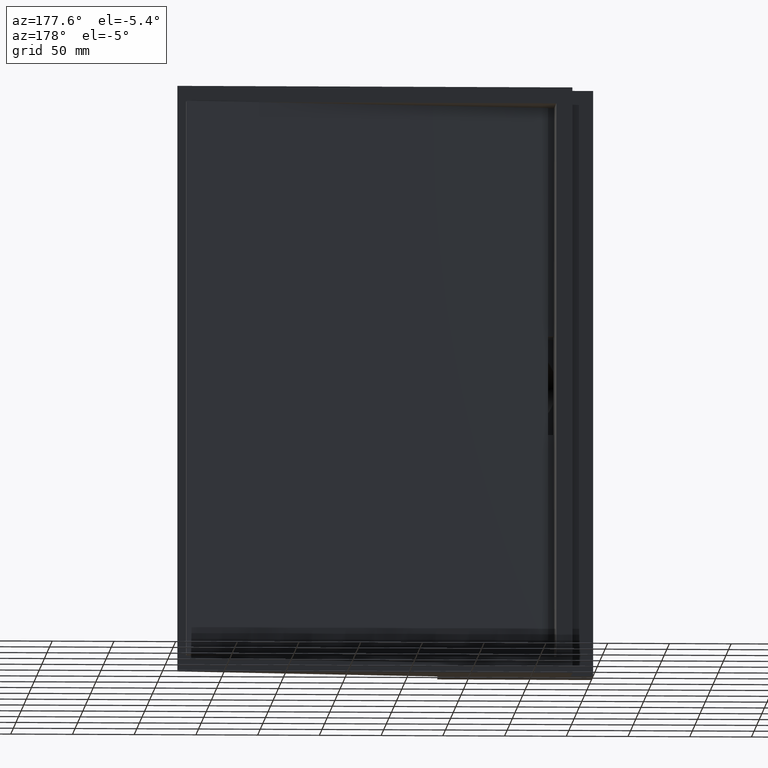
[diagram: clean part render]
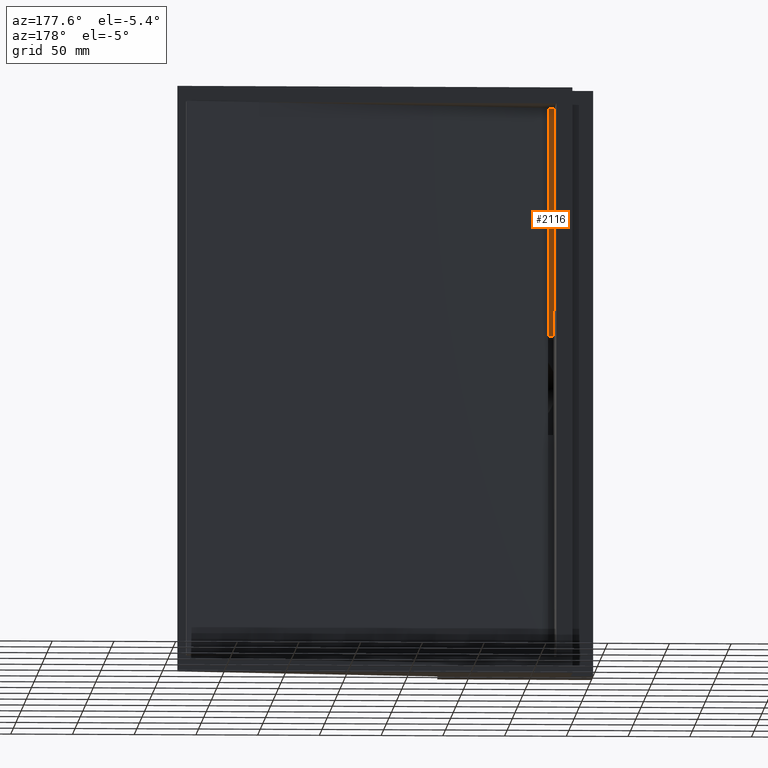
[diagram: same view with one face highlighted and labeled with its STEP entity id]
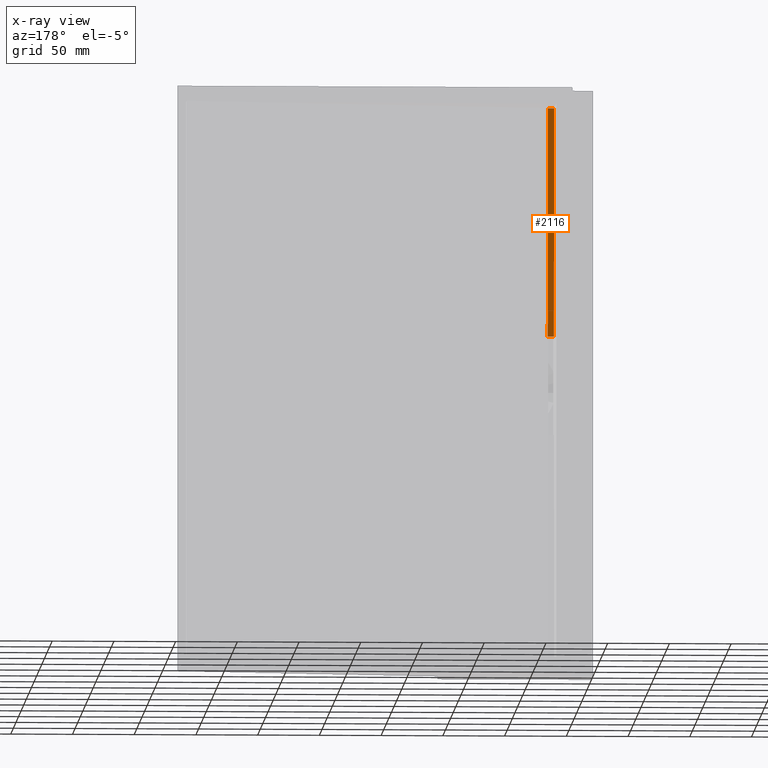
[diagram: x-ray of the same camera — body ghosted, the highlighted face saturated]
A machine part, auxiliary view. The second image highlights one B-rep face of the part: STEP entity #2116.
The next image is the same camera in x-ray: the body ghosted, the highlighted face saturated — about 0% of this face is hidden behind the body in this view.
In plain terms, the highlighted planar face has unit normal (0, -0.9996, 0.0297).
Its self-contained STEP definition (entity closure, byte-faithful):
#3 = VERTEX_POINT ( 'NONE', #2656 ) ;
#38 = LINE ( 'NONE', #1210, #2490 ) ;
#53 = CARTESIAN_POINT ( 'NONE',  ( 130.8911550848954200, -48.99986192803544300, 40.00000000000000000 ) ) ;
#55 = CARTESIAN_POINT ( 'NONE',  ( -73.11638246079655800, -48.99986192803544300, 40.00000000000000700 ) ) ;
#60 = ORIENTED_EDGE ( 'NONE', *, *, #2052, .T. ) ;
#76 = VERTEX_POINT ( 'NONE', #1800 ) ;
#101 = DIRECTION ( 'NONE',  ( 0.0000000000000000000, -0.9995583864792531000, 0.02971585467376108800 ) ) ;
#229 = CARTESIAN_POINT ( 'NONE',  ( -68.11638246079654400, -43.49999999999998600, 224.9999999999999700 ) ) ;
#499 = EDGE_CURVE ( 'NONE', #3, #76, #2213, .T. ) ;
#559 = LINE ( 'NONE', #53, #655 ) ;
#622 = EDGE_CURVE ( 'NONE', #2794, #2910, #1711, .T. ) ;
#655 = VECTOR ( 'NONE', #677, 1000.000000000000000 ) ;
#656 = ORIENTED_EDGE ( 'NONE', *, *, #622, .T. ) ;
#664 = EDGE_CURVE ( 'NONE', #76, #2910, #38, .T. ) ;
#673 = DIRECTION ( 'NONE',  ( -1.000000000000000000, -0.0000000000000000000, -0.0000000000000000000 ) ) ;
#677 = DIRECTION ( 'NONE',  ( -1.000000000000000000, -0.0000000000000000000, -0.0000000000000000000 ) ) ;
#687 = DIRECTION ( 'NONE',  ( 0.0000000000000000000, -0.02971585467376108500, -0.9995583864792529900 ) ) ;
#700 = CARTESIAN_POINT ( 'NONE',  ( 130.8911550848954200, -43.49999999999998600, 224.9999999999999700 ) ) ;
#839 = EDGE_LOOP ( 'NONE', ( #1437, #60, #656, #1447 ) ) ;
#969 = AXIS2_PLACEMENT_3D ( 'NONE', #700, #101, #687 ) ;
#1210 = CARTESIAN_POINT ( 'NONE',  ( 130.8911550848954200, -43.49999999999998600, 224.9999999999999700 ) ) ;
#1246 = CARTESIAN_POINT ( 'NONE',  ( -73.11638246079655800, -43.49999999999998600, 224.9999999999999700 ) ) ;
#1437 = ORIENTED_EDGE ( 'NONE', *, *, #499, .F. ) ;
#1447 = ORIENTED_EDGE ( 'NONE', *, *, #664, .F. ) ;
#1711 = LINE ( 'NONE', #2511, #1936 ) ;
#1738 = FACE_OUTER_BOUND ( 'NONE', #839, .T. ) ;
#1800 = CARTESIAN_POINT ( 'NONE',  ( -68.11638246079654400, -43.49999999999998600, 224.9999999999999700 ) ) ;
#1936 = VECTOR ( 'NONE', #2849, 1000.000000000000100 ) ;
#1957 = VECTOR ( 'NONE', #2364, 1000.000000000000100 ) ;
#2052 = EDGE_CURVE ( 'NONE', #3, #2794, #559, .T. ) ;
#2116 = ADVANCED_FACE ( 'NONE', ( #1738 ), #2627, .F. ) ;
#2213 = LINE ( 'NONE', #229, #1957 ) ;
#2364 = DIRECTION ( 'NONE',  ( 2.061951628451538900E-017, 0.02971585467376108500, 0.9995583864792529900 ) ) ;
#2490 = VECTOR ( 'NONE', #673, 1000.000000000000000 ) ;
#2511 = CARTESIAN_POINT ( 'NONE',  ( -73.11638246079655800, -43.49999999999998600, 224.9999999999999700 ) ) ;
#2627 = PLANE ( 'NONE',  #969 ) ;
#2656 = CARTESIAN_POINT ( 'NONE',  ( -68.11638246079654400, -48.99986192803544300, 40.00000000000000700 ) ) ;
#2794 = VERTEX_POINT ( 'NONE', #55 ) ;
#2849 = DIRECTION ( 'NONE',  ( -0.0000000000000000000, 0.02971585467376109200, 0.9995583864792529900 ) ) ;
#2910 = VERTEX_POINT ( 'NONE', #1246 ) ;